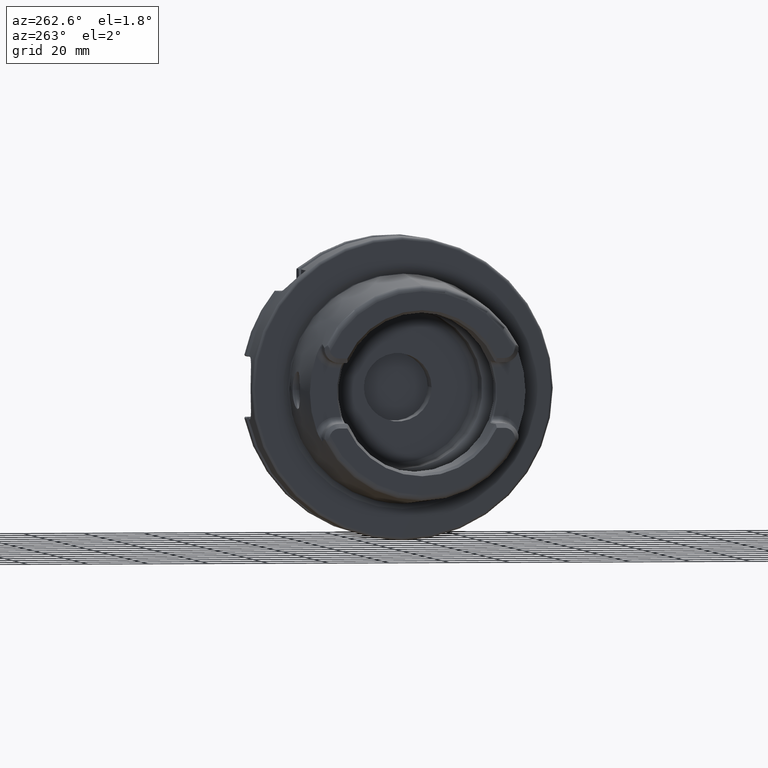
[diagram: clean part render]
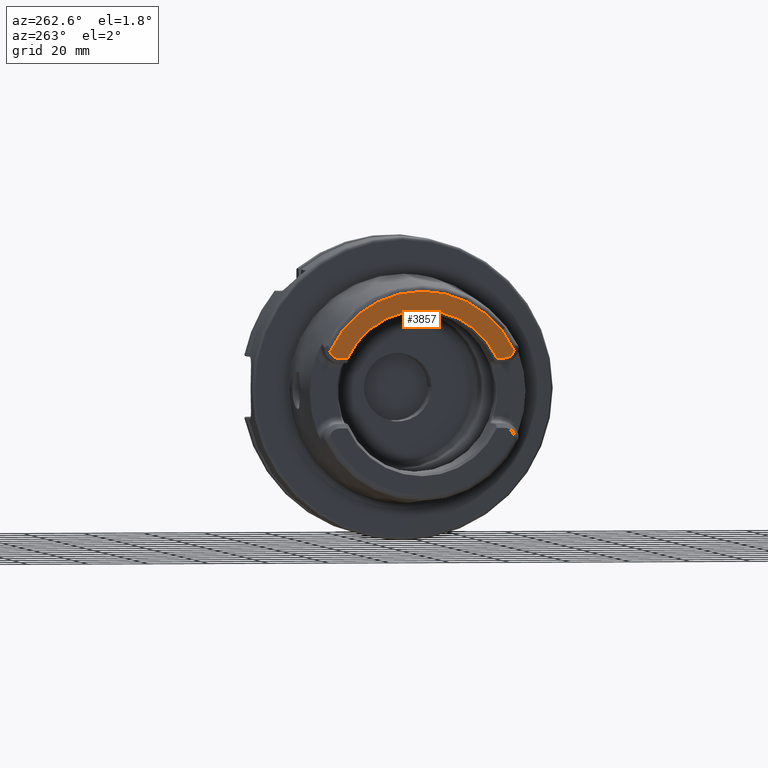
[diagram: same view with one face highlighted and labeled with its STEP entity id]
A machine part, auxiliary view. The second image highlights one B-rep face of the part: STEP entity #3857.
In plain terms, the highlighted planar face has unit normal (1, 0, 0).
Its self-contained STEP definition (entity closure, byte-faithful):
#728=DIRECTION('',(0.E0,1.E0,0.E0));
#729=VECTOR('',#728,2.542208185169E0);
#730=CARTESIAN_POINT('',(-5.E1,2.482779181483E1,1.151E1));
#731=LINE('',#730,#729);
#732=CARTESIAN_POINT('',(-5.E1,2.737E1,1.489E1));
#733=DIRECTION('',(1.E0,0.E0,0.E0));
#734=DIRECTION('',(0.E0,-1.261318465846E-14,-1.E0));
#735=AXIS2_PLACEMENT_3D('',#732,#733,#734);
#737=CARTESIAN_POINT('',(-5.E1,-2.737E1,1.489E1));
#738=DIRECTION('',(-1.E0,0.E0,0.E0));
#739=DIRECTION('',(0.E0,1.261318465846E-14,-1.E0));
#740=AXIS2_PLACEMENT_3D('',#737,#738,#739);
#742=DIRECTION('',(0.E0,-1.E0,0.E0));
#743=VECTOR('',#742,2.542208185169E0);
#744=CARTESIAN_POINT('',(-5.E1,-2.482779181483E1,1.151E1));
#745=LINE('',#744,#743);
#815=CARTESIAN_POINT('',(-5.E1,-2.842170943040E-14,-1.154631945610E-14));
#816=DIRECTION('',(1.E0,0.E0,0.E0));
#817=DIRECTION('',(0.E0,9.072487308076E-1,4.205945083428E-1));
#818=AXIS2_PLACEMENT_3D('',#815,#816,#817);
#871=CARTESIAN_POINT('',(-5.E1,0.E0,0.E0));
#872=DIRECTION('',(-1.E0,0.E0,0.E0));
#873=DIRECTION('',(0.E0,-9.107116187708E-1,4.130427912890E-1));
#874=AXIS2_PLACEMENT_3D('',#871,#872,#873);
#3031=CARTESIAN_POINT('',(-5.E1,-2.737E1,1.151E1));
#3033=VERTEX_POINT('',#3031);
#3035=CARTESIAN_POINT('',(-5.E1,-2.482779181483E1,1.151E1));
#3036=VERTEX_POINT('',#3035);
#3037=CARTESIAN_POINT('',(-5.E1,-3.059420437526E1,1.387564988957E1));
#3038=VERTEX_POINT('',#3037);
#3045=CARTESIAN_POINT('',(-5.E1,2.737E1,1.151E1));
#3047=VERTEX_POINT('',#3045);
#3049=CARTESIAN_POINT('',(-5.E1,2.482779181483E1,1.151E1));
#3050=VERTEX_POINT('',#3049);
#3051=CARTESIAN_POINT('',(-5.E1,3.059420437526E1,1.387564988957E1));
#3052=VERTEX_POINT('',#3051);
#3838=CARTESIAN_POINT('',(-5.E1,0.E0,0.E0));
#3839=DIRECTION('',(1.E0,0.E0,0.E0));
#3840=DIRECTION('',(0.E0,0.E0,1.E0));
#3841=AXIS2_PLACEMENT_3D('',#3838,#3839,#3840);
#3842=PLANE('',#3841);
#3844=ORIENTED_EDGE('',*,*,#3843,.T.);
#3846=ORIENTED_EDGE('',*,*,#3845,.T.);
#3848=ORIENTED_EDGE('',*,*,#3847,.F.);
#3850=ORIENTED_EDGE('',*,*,#3849,.F.);
#3852=ORIENTED_EDGE('',*,*,#3851,.F.);
#3854=ORIENTED_EDGE('',*,*,#3853,.F.);
#3855=EDGE_LOOP('',(#3844,#3846,#3848,#3850,#3852,#3854));
#3856=FACE_OUTER_BOUND('',#3855,.F.);
#3857=ADVANCED_FACE('',(#3856),#3842,.F.);
#736=CIRCLE('',#735,3.38E0);
#741=CIRCLE('',#740,3.38E0);
#819=CIRCLE('',#818,2.736602540378E1);
#875=CIRCLE('',#874,3.359373455294E1);
#3843=EDGE_CURVE('',#3050,#3047,#731,.T.);
#3845=EDGE_CURVE('',#3047,#3052,#736,.T.);
#3847=EDGE_CURVE('',#3038,#3052,#875,.T.);
#3849=EDGE_CURVE('',#3033,#3038,#741,.T.);
#3851=EDGE_CURVE('',#3036,#3033,#745,.T.);
#3853=EDGE_CURVE('',#3050,#3036,#819,.T.);